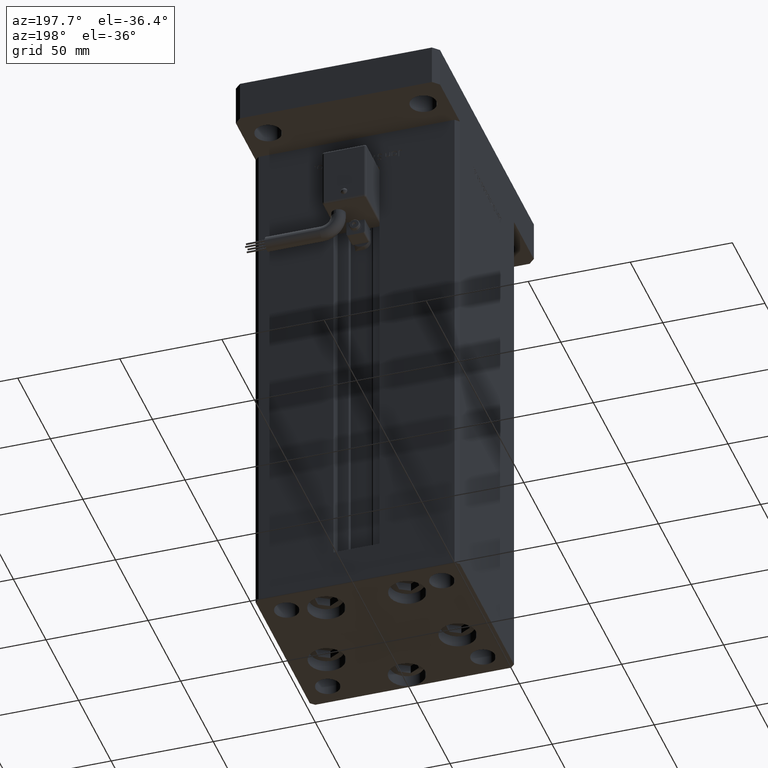
[diagram: clean part render]
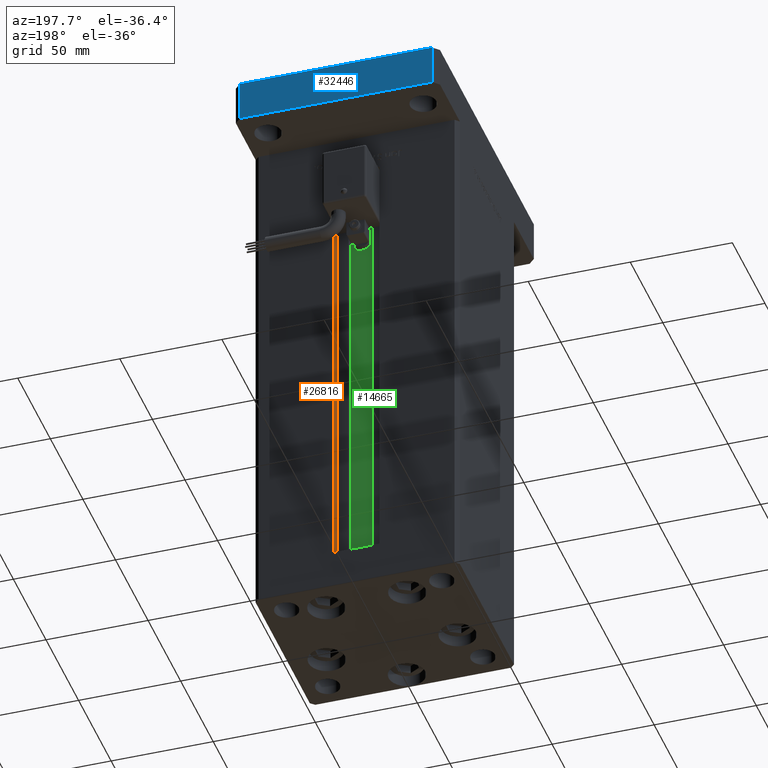
[diagram: same view with three faces highlighted in distinct colors, each labeled with its STEP entity id]
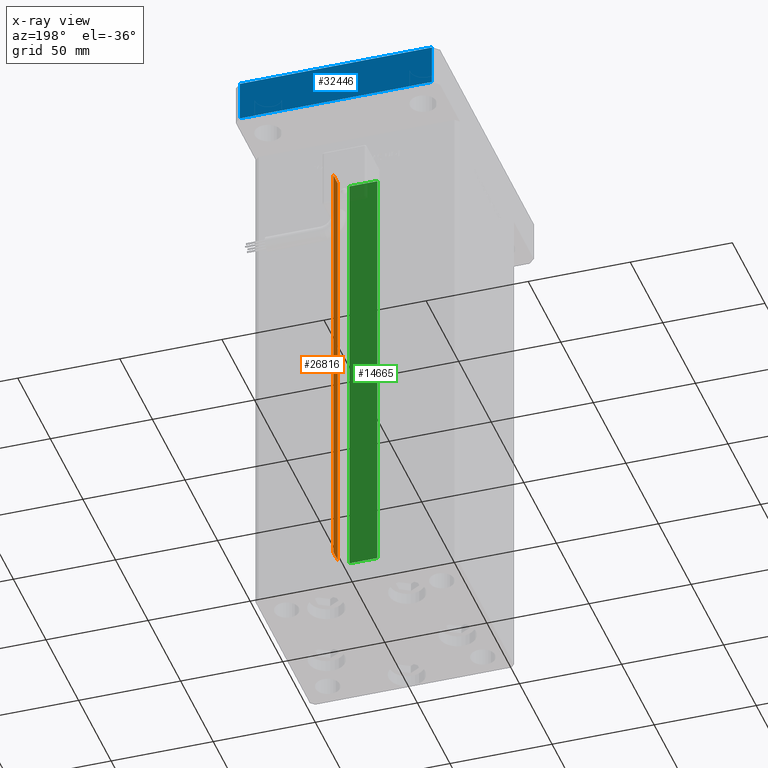
[diagram: x-ray of the same camera — body ghosted, the three highlighted faces saturated]
A machine part, auxiliary view with three faces highlighted in distinct colors.
The next image is the same camera in x-ray (body ghosted, the three faces saturated) — at least one of them is partly hidden behind the body in this view.
Their STEP definitions:

[orange] entity #26816 — the highlighted planar face has unit normal (1, 0, 0).
#756 = VERTEX_POINT ( 'NONE', #16858 ) ;
#810 = VERTEX_POINT ( 'NONE', #27438 ) ;
#1097 = LINE ( 'NONE', #10566, #22633 ) ;
#1109 = EDGE_CURVE ( 'NONE', #756, #810, #22782, .T. ) ;
#1932 = DIRECTION ( 'NONE',  ( 0.000000000000000000, 1.000000000000000000, 0.000000000000000000 ) ) ;
#3467 = CARTESIAN_POINT ( 'NONE',  ( 11.24999999999999822, 43.50000000000000000, 0.000000000000000000 ) ) ;
#5489 = PLANE ( 'NONE',  #31189 ) ;
#5764 = FACE_OUTER_BOUND ( 'NONE', #56309, .T. ) ;
#6632 = DIRECTION ( 'NONE',  ( -0.000000000000000000, -0.000000000000000000, 1.000000000000000000 ) ) ;
#8051 = EDGE_CURVE ( 'NONE', #37785, #54432, #55811, .T. ) ;
#8861 = CARTESIAN_POINT ( 'NONE',  ( 11.24999999999999822, 43.50000000000000000, 0.000000000000000000 ) ) ;
#10566 = CARTESIAN_POINT ( 'NONE',  ( 11.24999999999999822, 0.000000000000000000, 218.5000000000000000 ) ) ;
#14121 = CARTESIAN_POINT ( 'NONE',  ( 11.24999999999999822, 36.99999999999999289, 0.000000000000000000 ) ) ;
#14327 = DIRECTION ( 'NONE',  ( -0.000000000000000000, -1.000000000000000000, 0.000000000000000000 ) ) ;
#14379 = VECTOR ( 'NONE', #1932, 1000.000000000000000 ) ;
#16858 = CARTESIAN_POINT ( 'NONE',  ( 11.24999999999999822, 36.99999999999999289, 0.000000000000000000 ) ) ;
#18161 = DIRECTION ( 'NONE',  ( 1.000000000000000000, -0.000000000000000000, 0.000000000000000000 ) ) ;
#22633 = VECTOR ( 'NONE', #14327, 1000.000000000000000 ) ;
#22782 = LINE ( 'NONE', #40315, #33864 ) ;
#23068 = DIRECTION ( 'NONE',  ( -0.000000000000000000, -0.000000000000000000, 1.000000000000000000 ) ) ;
#26228 = ORIENTED_EDGE ( 'NONE', *, *, #8051, .F. ) ;
#26816 = ADVANCED_FACE ( 'NONE', ( #5764 ), #5489, .F. ) ;
#27438 = CARTESIAN_POINT ( 'NONE',  ( 11.24999999999999822, 36.99999999999999289, 218.5000000000000000 ) ) ;
#31189 = AXIS2_PLACEMENT_3D ( 'NONE', #14121, #18161, #35693 ) ;
#33034 = VECTOR ( 'NONE', #6632, 1000.000000000000000 ) ;
#33864 = VECTOR ( 'NONE', #23068, 1000.000000000000000 ) ;
#33976 = ORIENTED_EDGE ( 'NONE', *, *, #56472, .F. ) ;
#35693 = DIRECTION ( 'NONE',  ( 0.000000000000000000, 0.000000000000000000, -1.000000000000000000 ) ) ;
#37785 = VERTEX_POINT ( 'NONE', #8861 ) ;
#39489 = CARTESIAN_POINT ( 'NONE',  ( 11.24999999999999112, 43.50000000000000000, 218.5000000000000000 ) ) ;
#40315 = CARTESIAN_POINT ( 'NONE',  ( 11.24999999999999822, 36.99999999999999289, 0.000000000000000000 ) ) ;
#40832 = ORIENTED_EDGE ( 'NONE', *, *, #56502, .F. ) ;
#43992 = ORIENTED_EDGE ( 'NONE', *, *, #1109, .T. ) ;
#45952 = LINE ( 'NONE', #50268, #14379 ) ;
#50268 = CARTESIAN_POINT ( 'NONE',  ( 11.24999999999999822, 36.99999999999999289, 0.000000000000000000 ) ) ;
#54432 = VERTEX_POINT ( 'NONE', #39489 ) ;
#55811 = LINE ( 'NONE', #3467, #33034 ) ;
#56309 = EDGE_LOOP ( 'NONE', ( #26228, #40832, #43992, #33976 ) ) ;
#56472 = EDGE_CURVE ( 'NONE', #54432, #810, #1097, .T. ) ;
#56502 = EDGE_CURVE ( 'NONE', #756, #37785, #45952, .T. ) ;

[blue] entity #32446 — the highlighted planar face has unit normal (0, -1, 0).
#806 = DIRECTION ( 'NONE',  ( -0.000000000000000000, -0.000000000000000000, -1.000000000000000000 ) ) ;
#2795 = CARTESIAN_POINT ( 'NONE',  ( 47.00000000000002842, 75.00000000000002842, 0.000000000000000000 ) ) ;
#2814 = LINE ( 'NONE', #29262, #29226 ) ;
#5911 = CARTESIAN_POINT ( 'NONE',  ( -47.00000000000002842, 75.00000000000000000, 0.000000000000000000 ) ) ;
#13994 = ORIENTED_EDGE ( 'NONE', *, *, #26235, .T. ) ;
#14041 = CARTESIAN_POINT ( 'NONE',  ( 47.00000000000002842, 75.00000000000002842, 20.00000000000000000 ) ) ;
#15562 = VECTOR ( 'NONE', #806, 1000.000000000000000 ) ;
#15824 = ORIENTED_EDGE ( 'NONE', *, *, #24821, .T. ) ;
#18955 = EDGE_CURVE ( 'NONE', #44931, #23567, #2814, .T. ) ;
#20396 = PLANE ( 'NONE',  #33208 ) ;
#20791 = CARTESIAN_POINT ( 'NONE',  ( -47.00000000000002842, 75.00000000000000000, 20.00000000000000000 ) ) ;
#21525 = DIRECTION ( 'NONE',  ( 1.000000000000000000, 2.952720810173287140E-16, 0.000000000000000000 ) ) ;
#23567 = VERTEX_POINT ( 'NONE', #20791 ) ;
#23800 = VECTOR ( 'NONE', #55821, 1000.000000000000000 ) ;
#24752 = EDGE_LOOP ( 'NONE', ( #15824, #42707, #54807, #13994 ) ) ;
#24821 = EDGE_CURVE ( 'NONE', #37959, #48223, #54105, .T. ) ;
#26235 = EDGE_CURVE ( 'NONE', #44931, #37959, #48287, .T. ) ;
#29226 = VECTOR ( 'NONE', #46529, 1000.000000000000000 ) ;
#29262 = CARTESIAN_POINT ( 'NONE',  ( 47.00000000000002842, 75.00000000000002842, 20.00000000000000000 ) ) ;
#31592 = VECTOR ( 'NONE', #55265, 1000.000000000000000 ) ;
#32446 = ADVANCED_FACE ( 'NONE', ( #34184 ), #20396, .F. ) ;
#33208 = AXIS2_PLACEMENT_3D ( 'NONE', #34469, #38779, #21525 ) ;
#33962 = CARTESIAN_POINT ( 'NONE',  ( 47.00000000000002842, 75.00000000000002842, 0.000000000000000000 ) ) ;
#33973 = CARTESIAN_POINT ( 'NONE',  ( -47.00000000000002842, 75.00000000000000000, 20.00000000000000000 ) ) ;
#34184 = FACE_OUTER_BOUND ( 'NONE', #24752, .T. ) ;
#34469 = CARTESIAN_POINT ( 'NONE',  ( 47.00000000000002842, 75.00000000000002842, 20.00000000000000000 ) ) ;
#37959 = VERTEX_POINT ( 'NONE', #2795 ) ;
#38376 = CARTESIAN_POINT ( 'NONE',  ( 47.00000000000002842, 75.00000000000002842, 20.00000000000000000 ) ) ;
#38568 = LINE ( 'NONE', #33973, #31592 ) ;
#38779 = DIRECTION ( 'NONE',  ( 2.952720810173287140E-16, -1.000000000000000000, 0.000000000000000000 ) ) ;
#42707 = ORIENTED_EDGE ( 'NONE', *, *, #46553, .F. ) ;
#44931 = VERTEX_POINT ( 'NONE', #38376 ) ;
#46529 = DIRECTION ( 'NONE',  ( -1.000000000000000000, -2.952720810173287140E-16, 0.000000000000000000 ) ) ;
#46553 = EDGE_CURVE ( 'NONE', #23567, #48223, #38568, .T. ) ;
#48223 = VERTEX_POINT ( 'NONE', #5911 ) ;
#48287 = LINE ( 'NONE', #14041, #15562 ) ;
#54105 = LINE ( 'NONE', #33962, #23800 ) ;
#54807 = ORIENTED_EDGE ( 'NONE', *, *, #18955, .F. ) ;
#55265 = DIRECTION ( 'NONE',  ( -0.000000000000000000, -0.000000000000000000, -1.000000000000000000 ) ) ;
#55821 = DIRECTION ( 'NONE',  ( -1.000000000000000000, -2.952720810173287140E-16, 0.000000000000000000 ) ) ;

[green] entity #14665 — the highlighted planar face has unit normal (0, -1, 0).
#251 = ORIENTED_EDGE ( 'NONE', *, *, #6435, .F. ) ;
#3335 = CARTESIAN_POINT ( 'NONE',  ( -6.876153656360465050, 32.99999999999986500, 0.000000000000000000 ) ) ;
#4566 = EDGE_CURVE ( 'NONE', #35151, #10208, #22803, .T. ) ;
#5595 = DIRECTION ( 'NONE',  ( -1.000000000000000000, 0.000000000000000000, 0.000000000000000000 ) ) ;
#6100 = LINE ( 'NONE', #11281, #36103 ) ;
#6435 = EDGE_CURVE ( 'NONE', #9867, #35151, #46387, .T. ) ;
#8632 = CARTESIAN_POINT ( 'NONE',  ( 6.876153656360465050, 32.99999999999986500, 0.000000000000000000 ) ) ;
#8710 = ORIENTED_EDGE ( 'NONE', *, *, #40239, .T. ) ;
#9565 = CARTESIAN_POINT ( 'NONE',  ( 6.876153656360465050, 32.99999999999986500, 0.000000000000000000 ) ) ;
#9867 = VERTEX_POINT ( 'NONE', #3335 ) ;
#10208 = VERTEX_POINT ( 'NONE', #11327 ) ;
#10523 = EDGE_LOOP ( 'NONE', ( #12583, #251, #8710, #32013 ) ) ;
#11281 = CARTESIAN_POINT ( 'NONE',  ( -6.876153656360465050, 32.99999999999986500, 0.000000000000000000 ) ) ;
#11327 = CARTESIAN_POINT ( 'NONE',  ( 6.876153656360465050, 32.99999999999986500, 218.5000000000000000 ) ) ;
#12583 = ORIENTED_EDGE ( 'NONE', *, *, #4566, .F. ) ;
#14665 = ADVANCED_FACE ( 'NONE', ( #35557 ), #22338, .F. ) ;
#14681 = VECTOR ( 'NONE', #18215, 1000.000000000000000 ) ;
#18215 = DIRECTION ( 'NONE',  ( -0.000000000000000000, -0.000000000000000000, 1.000000000000000000 ) ) ;
#20219 = DIRECTION ( 'NONE',  ( 1.000000000000000000, -0.000000000000000000, -0.000000000000000000 ) ) ;
#22338 = PLANE ( 'NONE',  #25179 ) ;
#22803 = LINE ( 'NONE', #9565, #14681 ) ;
#24522 = CARTESIAN_POINT ( 'NONE',  ( 6.876153656360465050, 32.99999999999986500, 0.000000000000000000 ) ) ;
#24959 = VERTEX_POINT ( 'NONE', #46335 ) ;
#25179 = AXIS2_PLACEMENT_3D ( 'NONE', #26358, #53387, #48231 ) ;
#26358 = CARTESIAN_POINT ( 'NONE',  ( 6.876153656360465050, 32.99999999999986500, 0.000000000000000000 ) ) ;
#32013 = ORIENTED_EDGE ( 'NONE', *, *, #56133, .F. ) ;
#35151 = VERTEX_POINT ( 'NONE', #8632 ) ;
#35557 = FACE_OUTER_BOUND ( 'NONE', #10523, .T. ) ;
#36103 = VECTOR ( 'NONE', #54993, 1000.000000000000000 ) ;
#40239 = EDGE_CURVE ( 'NONE', #9867, #24959, #6100, .T. ) ;
#46335 = CARTESIAN_POINT ( 'NONE',  ( -6.876153656360465050, 32.99999999999986500, 218.5000000000000000 ) ) ;
#46387 = LINE ( 'NONE', #24522, #54126 ) ;
#47406 = VECTOR ( 'NONE', #5595, 1000.000000000000000 ) ;
#48231 = DIRECTION ( 'NONE',  ( 0.000000000000000000, 0.000000000000000000, -1.000000000000000000 ) ) ;
#53346 = CARTESIAN_POINT ( 'NONE',  ( 0.000000000000000000, 32.99999999999986500, 218.5000000000000000 ) ) ;
#53387 = DIRECTION ( 'NONE',  ( 0.000000000000000000, -1.000000000000000000, -0.000000000000000000 ) ) ;
#53630 = LINE ( 'NONE', #53346, #47406 ) ;
#54126 = VECTOR ( 'NONE', #20219, 1000.000000000000000 ) ;
#54993 = DIRECTION ( 'NONE',  ( -0.000000000000000000, -0.000000000000000000, 1.000000000000000000 ) ) ;
#56133 = EDGE_CURVE ( 'NONE', #10208, #24959, #53630, .T. ) ;